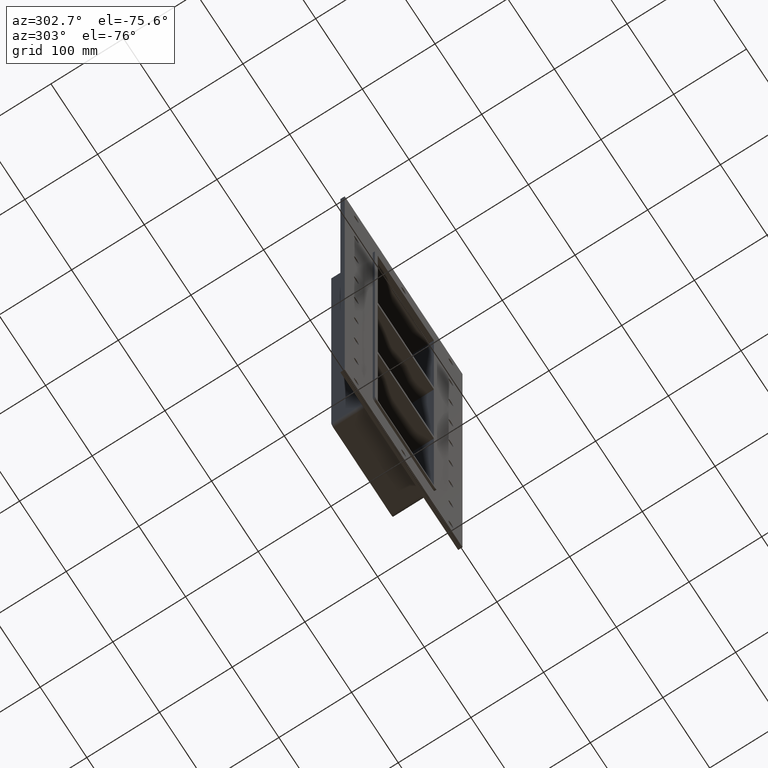
[diagram: clean part render]
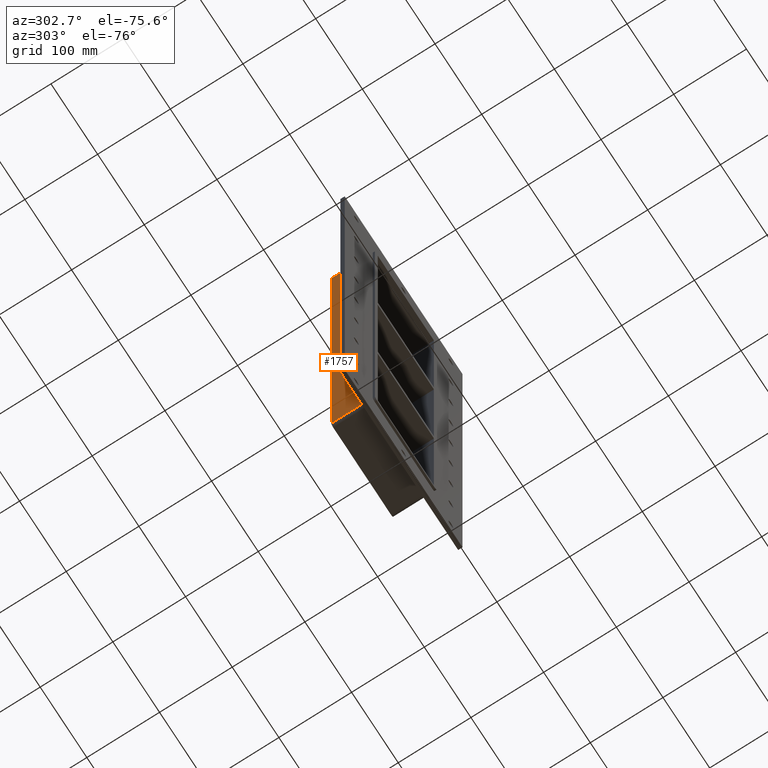
[diagram: same view with one face highlighted and labeled with its STEP entity id]
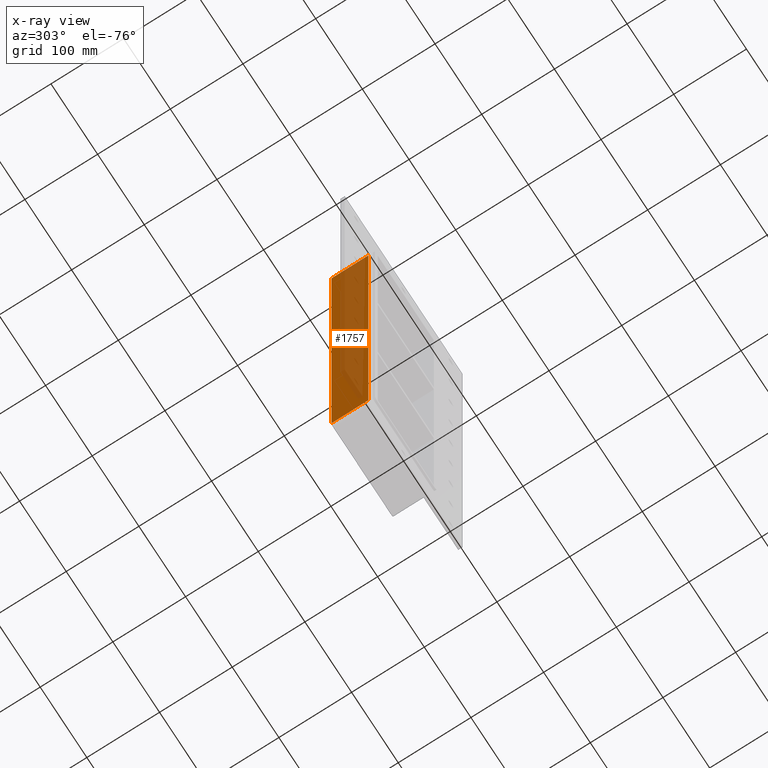
[diagram: x-ray of the same camera — body ghosted, the highlighted face saturated]
A machine part, auxiliary view. The second image highlights one B-rep face of the part: STEP entity #1757.
The next image is the same camera in x-ray: the body ghosted, the highlighted face saturated — about 54% of this face is hidden behind the body in this view.
In plain terms, the highlighted planar face has unit normal (-1, 0, 0).
Its self-contained STEP definition (entity closure, byte-faithful):
#1026=CARTESIAN_POINT('',(-66.25,6.000000000000001,-337.0));
#1027=VERTEX_POINT('',#1026);
#1077=CARTESIAN_POINT('',(-66.25,6.000000000000001,337.0));
#1078=VERTEX_POINT('',#1077);
#1086=CARTESIAN_POINT('',(-66.25,6.000000000000001,-337.0));
#1087=DIRECTION('',(0.0,0.0,1.0));
#1088=VECTOR('',#1087,674.00000000000011);
#1089=LINE('',#1086,#1088);
#1090=EDGE_CURVE('',#1027,#1078,#1089,.T.);
#1715=CARTESIAN_POINT('',(-66.25,57.0,-337.0));
#1716=VERTEX_POINT('',#1715);
#1717=CARTESIAN_POINT('',(-66.25,6.000000000000001,-337.0));
#1718=DIRECTION('',(0.0,1.0,0.0));
#1719=VECTOR('',#1718,51.0);
#1720=LINE('',#1717,#1719);
#1721=EDGE_CURVE('',#1027,#1716,#1720,.T.);
#1734=CARTESIAN_POINT('',(-66.25,0.0,-343.00000000000006));
#1735=DIRECTION('',(-1.0,0.0,0.0));
#1736=DIRECTION('',(0.0,0.0,1.0));
#1737=AXIS2_PLACEMENT_3D('',#1734,#1735,#1736);
#1738=PLANE('',#1737);
#1739=ORIENTED_EDGE('',*,*,#1090,.T.);
#1740=CARTESIAN_POINT('',(-66.25,57.0,336.99999999999994));
#1741=VERTEX_POINT('',#1740);
#1742=CARTESIAN_POINT('',(-66.25,57.0,337.0));
#1743=DIRECTION('',(0.0,-1.0,0.0));
#1744=VECTOR('',#1743,51.0);
#1745=LINE('',#1742,#1744);
#1746=EDGE_CURVE('',#1741,#1078,#1745,.T.);
#1747=ORIENTED_EDGE('',*,*,#1746,.F.);
#1748=CARTESIAN_POINT('',(-66.25,57.0,-337.00000000000006));
#1749=DIRECTION('',(0.0,0.0,1.0));
#1750=VECTOR('',#1749,674.0);
#1751=LINE('',#1748,#1750);
#1752=EDGE_CURVE('',#1716,#1741,#1751,.T.);
#1753=ORIENTED_EDGE('',*,*,#1752,.F.);
#1754=ORIENTED_EDGE('',*,*,#1721,.F.);
#1755=EDGE_LOOP('',(#1739,#1747,#1753,#1754));
#1756=FACE_OUTER_BOUND('',#1755,.T.);
#1757=ADVANCED_FACE('',(#1756),#1738,.T.);